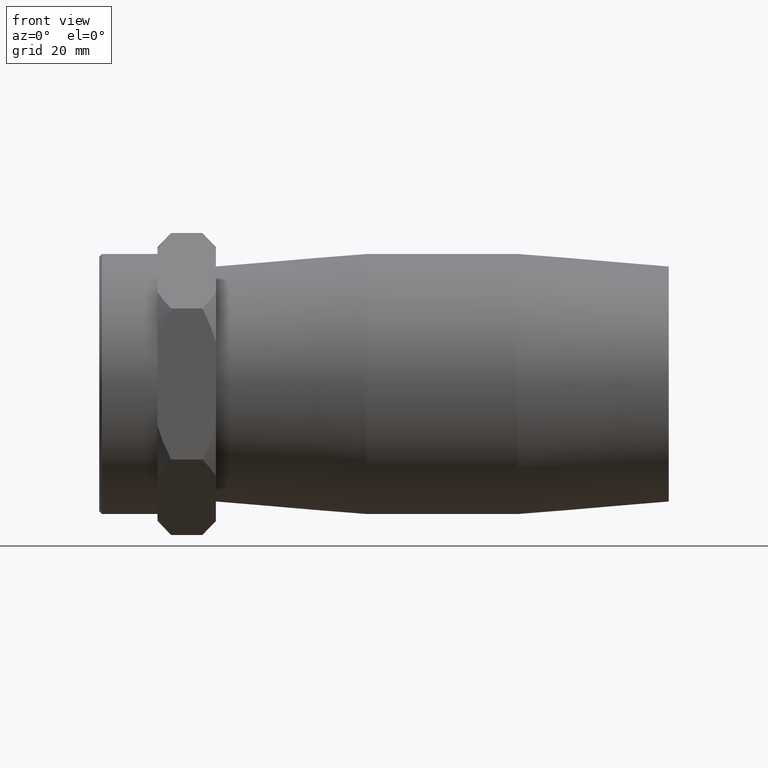
[diagram: clean part render]
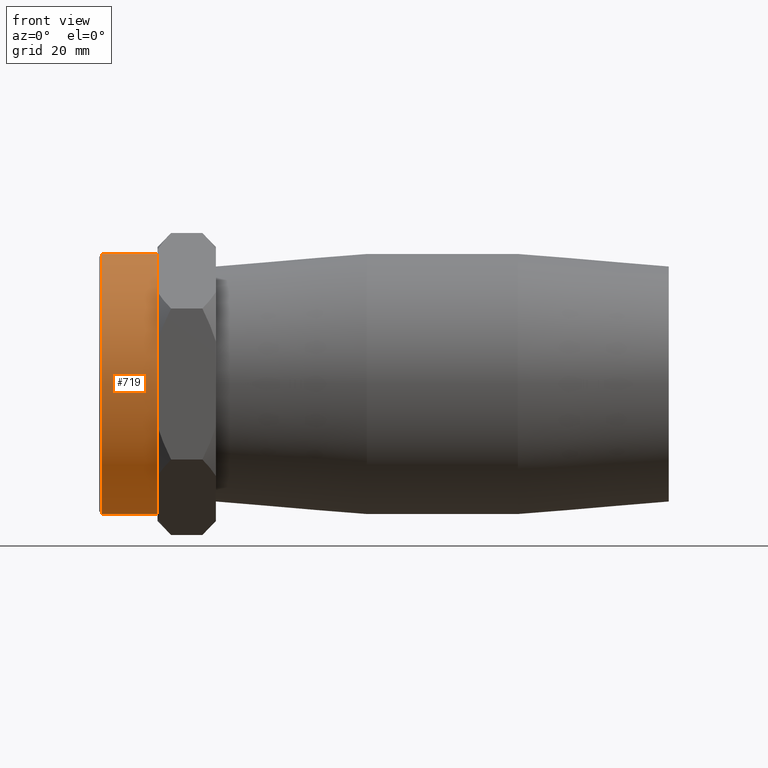
[diagram: same view with one face highlighted and labeled with its STEP entity id]
A machine part, front view. The second image highlights one B-rep face of the part: STEP entity #719.
In plain terms, the highlighted cylindrical surface (bore or boss wall) has radius 28 mm, axis along (1, 0, 0).
Its self-contained STEP definition (entity closure, byte-faithful):
#91=CYLINDRICAL_SURFACE('',#784,28.);
#130=FACE_BOUND('',#222,.T.);
#160=FACE_OUTER_BOUND('',#221,.T.);
#221=EDGE_LOOP('',(#516,#517,#518,#519,#520,#521));
#222=EDGE_LOOP('',(#522));
#299=CIRCLE('',#783,28.);
#300=CIRCLE('',#785,28.);
#301=CIRCLE('',#786,28.);
#302=CIRCLE('',#787,28.);
#303=CIRCLE('',#788,28.);
#304=CIRCLE('',#789,28.);
#305=CIRCLE('',#790,28.);
#344=VERTEX_POINT('',#1115);
#345=VERTEX_POINT('',#1118);
#346=VERTEX_POINT('',#1119);
#347=VERTEX_POINT('',#1121);
#348=VERTEX_POINT('',#1123);
#349=VERTEX_POINT('',#1125);
#350=VERTEX_POINT('',#1127);
#415=EDGE_CURVE('',#344,#344,#299,.T.);
#416=EDGE_CURVE('',#345,#346,#300,.T.);
#417=EDGE_CURVE('',#346,#347,#301,.T.);
#418=EDGE_CURVE('',#347,#348,#302,.T.);
#419=EDGE_CURVE('',#348,#349,#303,.T.);
#420=EDGE_CURVE('',#349,#350,#304,.T.);
#421=EDGE_CURVE('',#350,#345,#305,.T.);
#516=ORIENTED_EDGE('',*,*,#416,.T.);
#517=ORIENTED_EDGE('',*,*,#417,.T.);
#518=ORIENTED_EDGE('',*,*,#418,.T.);
#519=ORIENTED_EDGE('',*,*,#419,.T.);
#520=ORIENTED_EDGE('',*,*,#420,.T.);
#521=ORIENTED_EDGE('',*,*,#421,.T.);
#522=ORIENTED_EDGE('',*,*,#415,.F.);
#719=ADVANCED_FACE('',(#160,#130),#91,.T.);
#783=AXIS2_PLACEMENT_3D('',#1116,#899,#900);
#784=AXIS2_PLACEMENT_3D('',#1117,#901,#902);
#785=AXIS2_PLACEMENT_3D('',#1120,#903,#904);
#786=AXIS2_PLACEMENT_3D('',#1122,#905,#906);
#787=AXIS2_PLACEMENT_3D('',#1124,#907,#908);
#788=AXIS2_PLACEMENT_3D('',#1126,#909,#910);
#789=AXIS2_PLACEMENT_3D('',#1128,#911,#912);
#790=AXIS2_PLACEMENT_3D('',#1129,#913,#914);
#899=DIRECTION('center_axis',(-1.,0.,0.));
#900=DIRECTION('ref_axis',(0.,-1.,0.));
#901=DIRECTION('center_axis',(1.,0.,0.));
#902=DIRECTION('ref_axis',(0.,1.,0.));
#903=DIRECTION('center_axis',(-1.,0.,0.));
#904=DIRECTION('ref_axis',(0.,1.,0.));
#905=DIRECTION('center_axis',(-1.,0.,0.));
#906=DIRECTION('ref_axis',(0.,1.,0.));
#907=DIRECTION('center_axis',(-1.,0.,0.));
#908=DIRECTION('ref_axis',(0.,1.,0.));
#909=DIRECTION('center_axis',(-1.,0.,0.));
#910=DIRECTION('ref_axis',(0.,1.,0.));
#911=DIRECTION('center_axis',(-1.,0.,0.));
#912=DIRECTION('ref_axis',(0.,1.,0.));
#913=DIRECTION('center_axis',(-1.,0.,0.));
#914=DIRECTION('ref_axis',(0.,1.,0.));
#1115=CARTESIAN_POINT('',(-72.9,28.,-3.42901103761259E-15));
#1116=CARTESIAN_POINT('Origin',(-72.9,0.,0.));
#1117=CARTESIAN_POINT('Origin',(-61.,0.,0.));
#1118=CARTESIAN_POINT('',(-61.,28.,4.23051791004384E-14));
#1119=CARTESIAN_POINT('',(-61.,14.,-24.2487113059643));
#1120=CARTESIAN_POINT('Origin',(-61.,0.,0.));
#1121=CARTESIAN_POINT('',(-61.,-14.,-24.2487113059643));
#1122=CARTESIAN_POINT('Origin',(-61.,0.,0.));
#1123=CARTESIAN_POINT('',(-61.,-28.,-4.21884749357559E-14));
#1124=CARTESIAN_POINT('Origin',(-61.,0.,0.));
#1125=CARTESIAN_POINT('',(-61.,-14.,24.2487113059643));
#1126=CARTESIAN_POINT('Origin',(-61.,0.,0.));
#1127=CARTESIAN_POINT('',(-61.,14.,24.2487113059643));
#1128=CARTESIAN_POINT('Origin',(-61.,0.,0.));
#1129=CARTESIAN_POINT('Origin',(-61.,0.,0.));